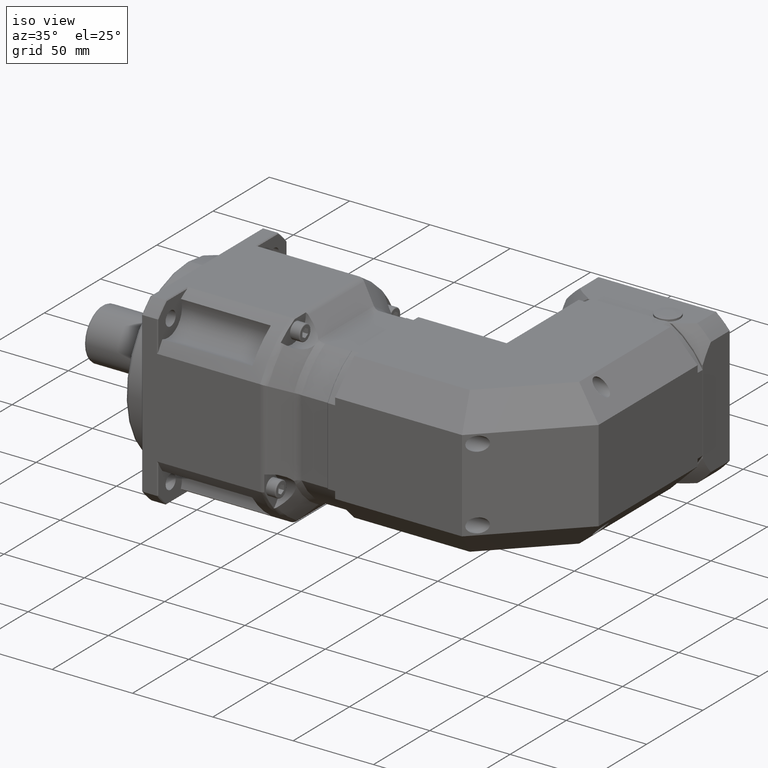
[diagram: clean part render]
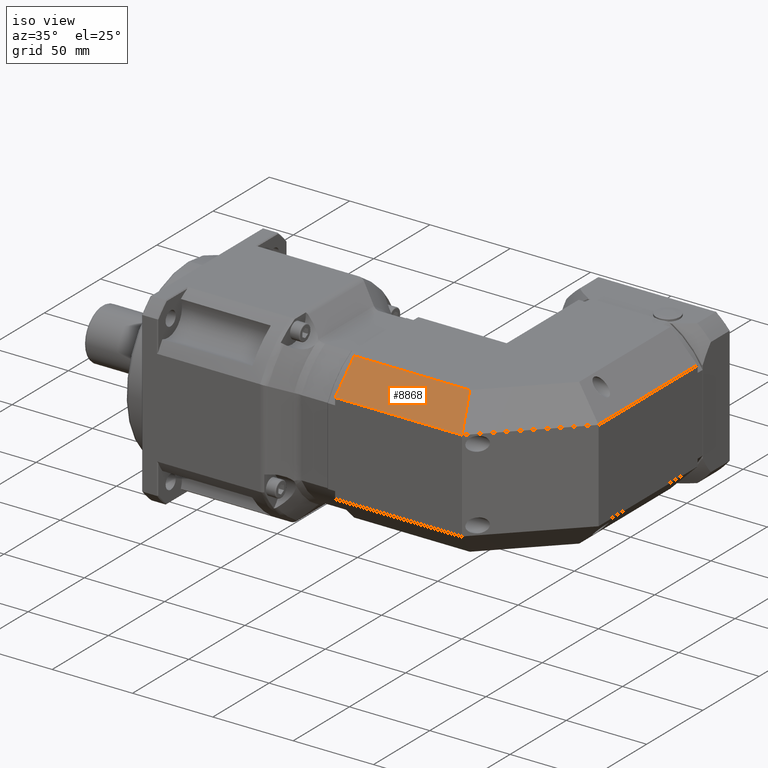
[diagram: same view with one face highlighted and labeled with its STEP entity id]
A machine part, iso view. The second image highlights one B-rep face of the part: STEP entity #8868.
In plain terms, the highlighted planar face has unit normal (-0, -0.7071, 0.7071).
Its self-contained STEP definition (entity closure, byte-faithful):
#528=LINE('',#15137,#991);
#531=LINE('',#15143,#994);
#557=LINE('',#15220,#1020);
#558=LINE('',#15221,#1021);
#991=VECTOR('',#11520,79.);
#994=VECTOR('',#11525,24.0416305603426);
#1020=VECTOR('',#11597,71.9583694396574);
#1021=VECTOR('',#11598,25.0516378895343);
#2510=FACE_OUTER_BOUND('',#3236,.T.);
#3236=EDGE_LOOP('',(#7270,#7271,#7272,#7273));
#4473=VERTEX_POINT('',#15134);
#4474=VERTEX_POINT('',#15136);
#4476=VERTEX_POINT('',#15142);
#4504=VERTEX_POINT('',#15219);
#5467=EDGE_CURVE('',#4474,#4473,#528,.T.);
#5470=EDGE_CURVE('',#4476,#4474,#531,.T.);
#5508=EDGE_CURVE('',#4504,#4476,#557,.T.);
#5509=EDGE_CURVE('',#4504,#4473,#558,.T.);
#7270=ORIENTED_EDGE('',*,*,#5508,.T.);
#7271=ORIENTED_EDGE('',*,*,#5470,.T.);
#7272=ORIENTED_EDGE('',*,*,#5467,.T.);
#7273=ORIENTED_EDGE('',*,*,#5509,.F.);
#8393=PLANE('',#9747);
#8868=ADVANCED_FACE('',(#2510),#8393,.T.);
#9747=AXIS2_PLACEMENT_3D('',#15218,#11595,#11596);
#11520=DIRECTION('',(1.,6.05780371977596E-16,6.0578969981121E-16));
#11525=DIRECTION('',(8.56709413644537E-16,-0.707106781186547,-0.707106781186548));
#11595=DIRECTION('center_axis',(-6.59577440167239E-21,-0.707106781186548,
0.707106781186547));
#11596=DIRECTION('ref_axis',(-1.,-6.10622663543836E-16,0.));
#11597=DIRECTION('',(-1.,-6.05780371977596E-16,-6.0578969981121E-16));
#11598=DIRECTION('',(0.28108463771482,-0.678598344545847,-0.678598344545847));
#15134=CARTESIAN_POINT('',(71.6854365143614,-9.43917799761844,106.875721489125));
#15136=CARTESIAN_POINT('',(-7.31456348563857,-9.43917799761849,106.875721489125));
#15137=CARTESIAN_POINT('',(-12.3145634856386,-9.43917799761849,106.875721489125));
#15142=CARTESIAN_POINT('',(-7.31456348563859,7.56082200238151,123.875721489125));
#15143=CARTESIAN_POINT('',(-7.31456348563858,-0.939177997618486,115.375721489125));
#15218=CARTESIAN_POINT('Origin',(-12.3145634856386,-0.939177997618494,115.375721489125));
#15219=CARTESIAN_POINT('',(64.6438059540188,7.56082200238155,123.875721489125));
#15220=CARTESIAN_POINT('',(-12.3145634856386,7.56082200238151,123.875721489125));
#15221=CARTESIAN_POINT('',(64.6438059540188,7.56082200238155,123.875721489125));